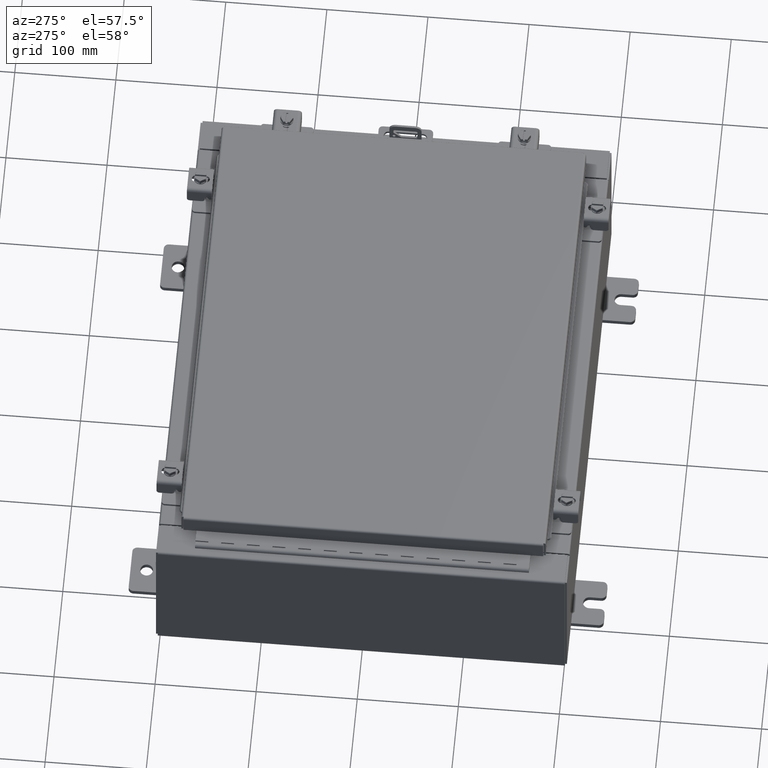
[diagram: clean part render]
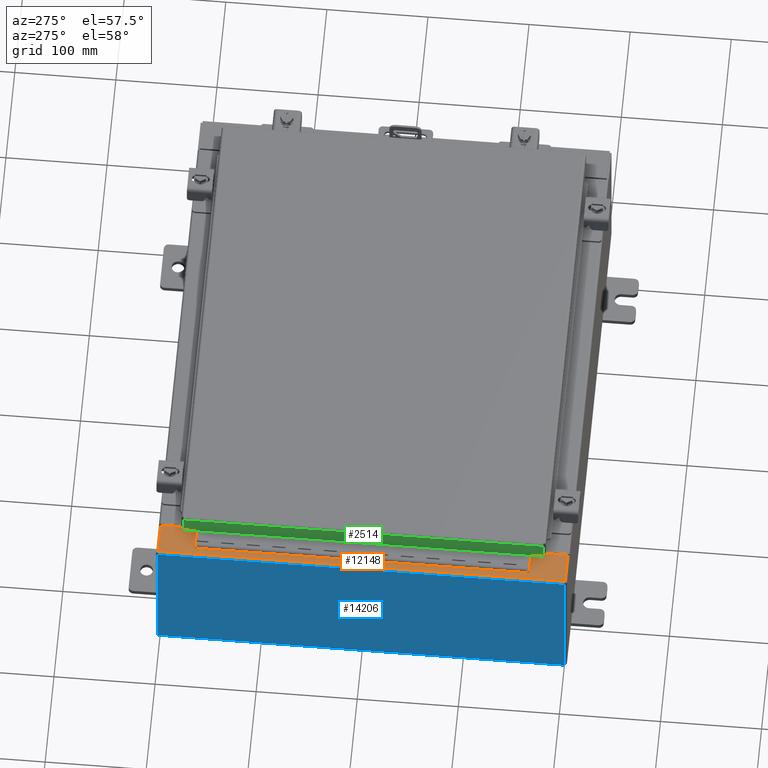
[diagram: same view with three faces highlighted in distinct colors, each labeled with its STEP entity id]
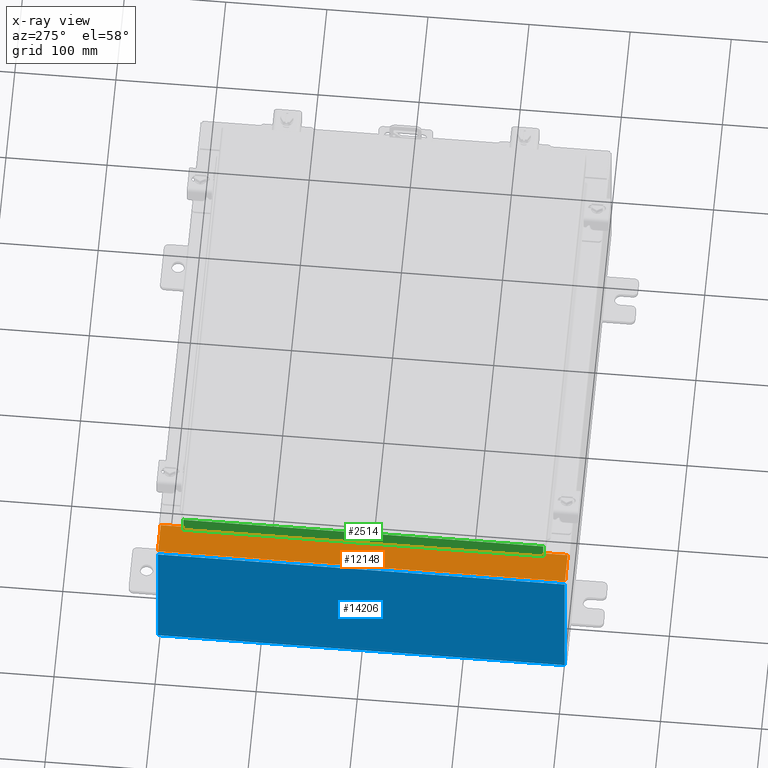
[diagram: x-ray of the same camera — body ghosted, the three highlighted faces saturated]
A machine part, auxiliary view with three faces highlighted in distinct colors.
The next image is the same camera in x-ray (body ghosted, the three faces saturated) — at least one of them is partly hidden behind the body in this view.
Their STEP definitions:

[orange] entity #12148 — the highlighted planar face has unit normal (0, 0, -1).
#438 = CARTESIAN_POINT ( 'NONE',  ( -8.699700000000019500, -4.084959092363675600E-030, 5.925300000000008000 ) ) ;
#535 = DIRECTION ( 'NONE',  ( -4.695517192964913900E-031, 1.000000000000000000, -3.349200841466645600E-045 ) ) ;
#1258 = VECTOR ( 'NONE', #20872, 39.37007874015748100 ) ;
#1472 = VECTOR ( 'NONE', #12022, 39.37007874015748100 ) ;
#1891 = ORIENTED_EDGE ( 'NONE', *, *, #14008, .F. ) ;
#2086 = CARTESIAN_POINT ( 'NONE',  ( -8.712700000000019400, 6.593750000000000000, 5.925300000000008900 ) ) ;
#2397 = VERTEX_POINT ( 'NONE', #14272 ) ;
#2461 = EDGE_CURVE ( 'NONE', #11746, #4951, #7508, .T. ) ;
#2579 = DIRECTION ( 'NONE',  ( 1.000000000000000000, 8.758115402030108600E-047, 7.132762385546378400E-015 ) ) ;
#2815 = EDGE_LOOP ( 'NONE', ( #4905, #9314, #5163, #17751, #16017, #10277, #1891, #15443, #14469, #22759, #20995, #13829 ) ) ;
#3134 = VECTOR ( 'NONE', #4406, 39.37007874015748100 ) ;
#3930 = CARTESIAN_POINT ( 'NONE',  ( -8.750050000000019400, 6.631099999999998200, 5.925300000000008000 ) ) ;
#4035 = CARTESIAN_POINT ( 'NONE',  ( -8.750050000000019400, -6.631100000000000000, 5.925300000000008900 ) ) ;
#4259 = LINE ( 'NONE', #4035, #20557 ) ;
#4311 = VECTOR ( 'NONE', #12335, 39.37007874015748100 ) ;
#4406 = DIRECTION ( 'NONE',  ( -4.695517192964913900E-031, 1.000000000000000000, -3.349200841466645600E-045 ) ) ;
#4532 = VERTEX_POINT ( 'NONE', #10939 ) ;
#4761 = DIRECTION ( 'NONE',  ( -7.132762385546378400E-015, -0.0000000000000000000, 1.000000000000000000 ) ) ;
#4905 = ORIENTED_EDGE ( 'NONE', *, *, #17345, .F. ) ;
#4951 = VERTEX_POINT ( 'NONE', #26107 ) ;
#5163 = ORIENTED_EDGE ( 'NONE', *, *, #19752, .T. ) ;
#5326 = LINE ( 'NONE', #21848, #3134 ) ;
#5377 = LINE ( 'NONE', #2086, #1472 ) ;
#5399 = VECTOR ( 'NONE', #9217, 39.37007874015748100 ) ;
#5540 = CARTESIAN_POINT ( 'NONE',  ( -4.252457061909003800E-014, -7.925300000000000000, 5.925300000000070200 ) ) ;
#5803 = LINE ( 'NONE', #438, #22145 ) ;
#6069 = DIRECTION ( 'NONE',  ( 1.378798528088155100E-016, 1.000000000000000000, 9.834642278393904800E-031 ) ) ;
#6296 = CARTESIAN_POINT ( 'NONE',  ( -9.912300000000019700, 7.925300000000000000, 5.925299999999999100 ) ) ;
#6869 = LINE ( 'NONE', #13724, #4311 ) ;
#7301 = CARTESIAN_POINT ( 'NONE',  ( -8.750050000000019400, 6.593749999999999100, 5.925300000000008900 ) ) ;
#7474 = EDGE_CURVE ( 'NONE', #25016, #23926, #13507, .T. ) ;
#7508 = LINE ( 'NONE', #7301, #14037 ) ;
#7604 = CARTESIAN_POINT ( 'NONE',  ( -8.699700000000019500, 7.925300000000000000, 5.925300000000008000 ) ) ;
#8947 = AXIS2_PLACEMENT_3D ( 'NONE', #14512, #4761, #23578 ) ;
#9144 = CIRCLE ( 'NONE', #8947, 0.01867499999999949400 ) ;
#9217 = DIRECTION ( 'NONE',  ( -1.000000000000000000, 0.0000000000000000000, 0.0000000000000000000 ) ) ;
#9248 = DIRECTION ( 'NONE',  ( 1.000000000000000000, 0.0000000000000000000, -2.170286390200002500E-014 ) ) ;
#9261 = VECTOR ( 'NONE', #6069, 39.37007874015748100 ) ;
#9314 = ORIENTED_EDGE ( 'NONE', *, *, #21384, .T. ) ;
#9688 = VERTEX_POINT ( 'NONE', #14899 ) ;
#9725 = LINE ( 'NONE', #22882, #1258 ) ;
#9742 = VERTEX_POINT ( 'NONE', #16590 ) ;
#10277 = ORIENTED_EDGE ( 'NONE', *, *, #12927, .T. ) ;
#10526 = DIRECTION ( 'NONE',  ( -1.000000000000000000, 0.0000000000000000000, -7.132762385546378400E-015 ) ) ;
#10841 = DIRECTION ( 'NONE',  ( 7.132762385546378400E-015, 0.0000000000000000000, -1.000000000000000000 ) ) ;
#10939 = CARTESIAN_POINT ( 'NONE',  ( -8.699700000000019500, -6.631100000000000000, 5.925300000000008000 ) ) ;
#11675 = AXIS2_PLACEMENT_3D ( 'NONE', #17342, #26023, #18341 ) ;
#11746 = VERTEX_POINT ( 'NONE', #19726 ) ;
#12022 = DIRECTION ( 'NONE',  ( -0.0000000000000000000, -1.000000000000000000, -0.0000000000000000000 ) ) ;
#12148 = ADVANCED_FACE ( 'NONE', ( #20337 ), #18822, .F. ) ;
#12335 = DIRECTION ( 'NONE',  ( -1.000000000000000000, -2.170286390200002500E-014, 2.170286390200002500E-014 ) ) ;
#12927 = EDGE_CURVE ( 'NONE', #9688, #4532, #5803, .T. ) ;
#13507 = LINE ( 'NONE', #6296, #9261 ) ;
#13724 = CARTESIAN_POINT ( 'NONE',  ( -8.699700000000019500, 6.631100000000000000, 5.925300000000008000 ) ) ;
#13829 = ORIENTED_EDGE ( 'NONE', *, *, #20902, .F. ) ;
#13930 = LINE ( 'NONE', #5540, #25288 ) ;
#13932 = EDGE_CURVE ( 'NONE', #9742, #2397, #18852, .T. ) ;
#14008 = EDGE_CURVE ( 'NONE', #2397, #4532, #4259, .T. ) ;
#14037 = VECTOR ( 'NONE', #25133, 39.37007874015748100 ) ;
#14272 = CARTESIAN_POINT ( 'NONE',  ( -8.750050000000019400, -6.631100000000000000, 5.925300000000008000 ) ) ;
#14469 = ORIENTED_EDGE ( 'NONE', *, *, #14916, .F. ) ;
#14488 = CARTESIAN_POINT ( 'NONE',  ( -4.252457061909003800E-014, 0.0000000000000000000, 5.925300000000070200 ) ) ;
#14512 = CARTESIAN_POINT ( 'NONE',  ( -8.750050000000019400, 6.612424999999998200, 5.925300000000008900 ) ) ;
#14899 = CARTESIAN_POINT ( 'NONE',  ( -8.699700000000019500, -7.925300000000000000, 5.925300000000008000 ) ) ;
#14916 = EDGE_CURVE ( 'NONE', #18841, #9742, #23215, .T. ) ;
#15121 = VERTEX_POINT ( 'NONE', #3930 ) ;
#15443 = ORIENTED_EDGE ( 'NONE', *, *, #13932, .F. ) ;
#16017 = ORIENTED_EDGE ( 'NONE', *, *, #17670, .T. ) ;
#16590 = CARTESIAN_POINT ( 'NONE',  ( -8.750050000000019400, -6.593749999999999100, 5.925300000000008000 ) ) ;
#16691 = VERTEX_POINT ( 'NONE', #7604 ) ;
#16699 = CARTESIAN_POINT ( 'NONE',  ( -9.912300000000021400, -7.925300000000000000, 5.925299999999999100 ) ) ;
#17342 = CARTESIAN_POINT ( 'NONE',  ( -8.750050000000019400, -6.612425000000000000, 5.925300000000008900 ) ) ;
#17345 = EDGE_CURVE ( 'NONE', #19352, #15121, #6869, .T. ) ;
#17670 = EDGE_CURVE ( 'NONE', #25016, #9688, #13930, .T. ) ;
#17751 = ORIENTED_EDGE ( 'NONE', *, *, #7474, .F. ) ;
#18341 = DIRECTION ( 'NONE',  ( 1.000000000000000000, 0.0000000000000000000, 0.0000000000000000000 ) ) ;
#18822 = PLANE ( 'NONE',  #26265 ) ;
#18841 = VERTEX_POINT ( 'NONE', #24314 ) ;
#18852 = CIRCLE ( 'NONE', #11675, 0.01867499999999949400 ) ;
#19352 = VERTEX_POINT ( 'NONE', #21441 ) ;
#19726 = CARTESIAN_POINT ( 'NONE',  ( -8.750050000000019400, 6.593749999999999100, 5.925300000000008000 ) ) ;
#19752 = EDGE_CURVE ( 'NONE', #16691, #23926, #9725, .T. ) ;
#20254 = CARTESIAN_POINT ( 'NONE',  ( -8.712700000000019400, -6.593750000000000000, 5.925300000000008900 ) ) ;
#20337 = FACE_OUTER_BOUND ( 'NONE', #2815, .T. ) ;
#20557 = VECTOR ( 'NONE', #9248, 39.37007874015748100 ) ;
#20872 = DIRECTION ( 'NONE',  ( -1.000000000000000000, -6.146651423996189400E-032, -7.132762385546378400E-015 ) ) ;
#20902 = EDGE_CURVE ( 'NONE', #15121, #11746, #9144, .T. ) ;
#20995 = ORIENTED_EDGE ( 'NONE', *, *, #2461, .F. ) ;
#21384 = EDGE_CURVE ( 'NONE', #19352, #16691, #5326, .T. ) ;
#21441 = CARTESIAN_POINT ( 'NONE',  ( -8.699700000000019500, 6.631100000000000000, 5.925300000000008000 ) ) ;
#21848 = CARTESIAN_POINT ( 'NONE',  ( -8.699700000000019500, -4.084959092363675600E-030, 5.925300000000008000 ) ) ;
#22145 = VECTOR ( 'NONE', #535, 39.37007874015748100 ) ;
#22759 = ORIENTED_EDGE ( 'NONE', *, *, #24905, .F. ) ;
#22882 = CARTESIAN_POINT ( 'NONE',  ( -4.252457061909003800E-014, 7.925300000000000000, 5.925300000000070200 ) ) ;
#23215 = LINE ( 'NONE', #20254, #5399 ) ;
#23578 = DIRECTION ( 'NONE',  ( 1.000000000000000000, 0.0000000000000000000, 0.0000000000000000000 ) ) ;
#23926 = VERTEX_POINT ( 'NONE', #25374 ) ;
#24314 = CARTESIAN_POINT ( 'NONE',  ( -8.712700000000019400, -6.593750000000000000, 5.925300000000008900 ) ) ;
#24905 = EDGE_CURVE ( 'NONE', #4951, #18841, #5377, .T. ) ;
#25016 = VERTEX_POINT ( 'NONE', #16699 ) ;
#25133 = DIRECTION ( 'NONE',  ( 1.000000000000000000, 0.0000000000000000000, 0.0000000000000000000 ) ) ;
#25288 = VECTOR ( 'NONE', #2579, 39.37007874015748100 ) ;
#25374 = CARTESIAN_POINT ( 'NONE',  ( -9.912300000000021400, 7.925300000000000000, 5.925299999999999100 ) ) ;
#26023 = DIRECTION ( 'NONE',  ( -7.132762385546378400E-015, -0.0000000000000000000, 1.000000000000000000 ) ) ;
#26107 = CARTESIAN_POINT ( 'NONE',  ( -8.712700000000019400, 6.593749999999999100, 5.925300000000008900 ) ) ;
#26265 = AXIS2_PLACEMENT_3D ( 'NONE', #14488, #10841, #10526 ) ;

[blue] entity #14206 — the highlighted planar face has unit normal (1, 0, 0).
#1012 = DIRECTION ( 'NONE',  ( -0.0000000000000000000, 1.000000000000000000, -0.0000000000000000000 ) ) ;
#2592 = DIRECTION ( 'NONE',  ( 3.319545939341922800E-015, 0.0000000000000000000, -1.000000000000000000 ) ) ;
#2952 = VERTEX_POINT ( 'NONE', #6673 ) ;
#3522 = VERTEX_POINT ( 'NONE', #4836 ) ;
#3743 = EDGE_CURVE ( 'NONE', #3522, #10653, #5884, .T. ) ;
#3947 = DIRECTION ( 'NONE',  ( 3.319545939341922800E-015, 0.0000000000000000000, -1.000000000000000000 ) ) ;
#4836 = CARTESIAN_POINT ( 'NONE',  ( -10.00000000000002300, -7.925300000000000000, 5.837599999999999200 ) ) ;
#5884 = LINE ( 'NONE', #18177, #23936 ) ;
#6569 = EDGE_CURVE ( 'NONE', #13359, #3522, #18105, .T. ) ;
#6673 = CARTESIAN_POINT ( 'NONE',  ( -10.00000000000000000, 7.925300000000000000, 0.01299999999999985900 ) ) ;
#6795 = CARTESIAN_POINT ( 'NONE',  ( -10.00000000000002000, 7.925300000000000000, 5.837599999999999200 ) ) ;
#6925 = EDGE_CURVE ( 'NONE', #10653, #2952, #13805, .T. ) ;
#8577 = ORIENTED_EDGE ( 'NONE', *, *, #6925, .T. ) ;
#10653 = VERTEX_POINT ( 'NONE', #6795 ) ;
#12922 = EDGE_LOOP ( 'NONE', ( #19061, #8577, #16241, #20753 ) ) ;
#13359 = VERTEX_POINT ( 'NONE', #16028 ) ;
#13805 = LINE ( 'NONE', #17103, #23555 ) ;
#14206 = ADVANCED_FACE ( 'NONE', ( #20886 ), #14339, .F. ) ;
#14339 = PLANE ( 'NONE',  #24214 ) ;
#15386 = EDGE_CURVE ( 'NONE', #13359, #2952, #17087, .T. ) ;
#15537 = CARTESIAN_POINT ( 'NONE',  ( -10.00000000000000000, 7.925300000000000000, 0.01299999999999986400 ) ) ;
#16028 = CARTESIAN_POINT ( 'NONE',  ( -10.00000000000000000, -7.925300000000000000, 0.01299999999999986400 ) ) ;
#16241 = ORIENTED_EDGE ( 'NONE', *, *, #15386, .F. ) ;
#17087 = LINE ( 'NONE', #15537, #17152 ) ;
#17103 = CARTESIAN_POINT ( 'NONE',  ( -10.00000000000000000, 7.925300000000000000, -3.345627304943080600E-014 ) ) ;
#17152 = VECTOR ( 'NONE', #1012, 39.37007874015748100 ) ;
#17307 = CARTESIAN_POINT ( 'NONE',  ( -10.00000000000000000, -7.925300000000000000, -3.345627304943080600E-014 ) ) ;
#18105 = LINE ( 'NONE', #17307, #24780 ) ;
#18177 = CARTESIAN_POINT ( 'NONE',  ( -10.00000000000002300, -7.925300000000000000, 5.837599999999999200 ) ) ;
#18685 = DIRECTION ( 'NONE',  ( -3.319545939341922800E-015, 0.0000000000000000000, 1.000000000000000000 ) ) ;
#19061 = ORIENTED_EDGE ( 'NONE', *, *, #3743, .T. ) ;
#19239 = DIRECTION ( 'NONE',  ( 0.0000000000000000000, 1.000000000000000000, 0.0000000000000000000 ) ) ;
#20321 = CARTESIAN_POINT ( 'NONE',  ( -10.00000000000000000, 0.0000000000000000000, -3.345627304943080600E-014 ) ) ;
#20753 = ORIENTED_EDGE ( 'NONE', *, *, #6569, .T. ) ;
#20886 = FACE_OUTER_BOUND ( 'NONE', #12922, .T. ) ;
#21357 = DIRECTION ( 'NONE',  ( 1.000000000000000000, 0.0000000000000000000, 3.319545939341922800E-015 ) ) ;
#23555 = VECTOR ( 'NONE', #3947, 39.37007874015748100 ) ;
#23936 = VECTOR ( 'NONE', #19239, 39.37007874015748100 ) ;
#24214 = AXIS2_PLACEMENT_3D ( 'NONE', #20321, #21357, #2592 ) ;
#24780 = VECTOR ( 'NONE', #18685, 39.37007874015748100 ) ;

[green] entity #2514 — the highlighted planar face has unit normal (1, 0, -0).
#604 = AXIS2_PLACEMENT_3D ( 'NONE', #5477, #9697, #3685 ) ;
#1749 = VECTOR ( 'NONE', #2631, 39.37007874015748100 ) ;
#1983 = CARTESIAN_POINT ( 'NONE',  ( -9.077999999999999400, 7.005157864376271500, -0.08770000000000113800 ) ) ;
#2514 = ADVANCED_FACE ( 'NONE', ( #23725 ), #25588, .F. ) ;
#2631 = DIRECTION ( 'NONE',  ( -3.034122441942816500E-015, 6.982962677686265900E-015, -1.000000000000000000 ) ) ;
#2713 = CARTESIAN_POINT ( 'NONE',  ( -9.077999999999999400, -7.093999999999999400, -0.08770000000000004200 ) ) ;
#3323 = CARTESIAN_POINT ( 'NONE',  ( -9.078000000000001200, -7.005157864376262600, -0.7949999999999996000 ) ) ;
#3685 = DIRECTION ( 'NONE',  ( -3.034122441942816500E-015, 0.0000000000000000000, -1.000000000000000000 ) ) ;
#4236 = CARTESIAN_POINT ( 'NONE',  ( -9.077999999999999400, -7.005157864376268900, -0.07469999999999976700 ) ) ;
#5477 = CARTESIAN_POINT ( 'NONE',  ( -9.077999999999999400, -6.991744033404087000E-016, 2.780457718396846700E-014 ) ) ;
#5629 = LINE ( 'NONE', #21909, #8403 ) ;
#6269 = VECTOR ( 'NONE', #25733, 39.37007874015748100 ) ;
#6681 = DIRECTION ( 'NONE',  ( -7.701855070945201600E-017, 1.000000000000000000, 1.251551449028595500E-016 ) ) ;
#6880 = LINE ( 'NONE', #4236, #1749 ) ;
#7680 = ORIENTED_EDGE ( 'NONE', *, *, #21556, .F. ) ;
#8403 = VECTOR ( 'NONE', #6681, 39.37007874015748100 ) ;
#9174 = EDGE_LOOP ( 'NONE', ( #22146, #26284, #7680, #23693 ) ) ;
#9697 = DIRECTION ( 'NONE',  ( 1.000000000000000000, 7.701855070945239800E-017, -3.034122441942816500E-015 ) ) ;
#11063 = VERTEX_POINT ( 'NONE', #12938 ) ;
#12938 = CARTESIAN_POINT ( 'NONE',  ( -9.077999999999999400, -7.005157864376266200, -0.08770000000000061100 ) ) ;
#15861 = CARTESIAN_POINT ( 'NONE',  ( -9.077999999999999400, 7.005157864376270600, 7.672133310220841000E-014 ) ) ;
#18404 = LINE ( 'NONE', #2713, #18492 ) ;
#18492 = VECTOR ( 'NONE', #25477, 39.37007874015748100 ) ;
#19138 = VERTEX_POINT ( 'NONE', #20764 ) ;
#19993 = LINE ( 'NONE', #15861, #6269 ) ;
#20764 = CARTESIAN_POINT ( 'NONE',  ( -9.078000000000001200, 7.005157864376276000, -0.7949999999999979300 ) ) ;
#21343 = EDGE_CURVE ( 'NONE', #26229, #11063, #18404, .T. ) ;
#21512 = EDGE_CURVE ( 'NONE', #11063, #23069, #6880, .T. ) ;
#21516 = EDGE_CURVE ( 'NONE', #26229, #19138, #19993, .T. ) ;
#21556 = EDGE_CURVE ( 'NONE', #23069, #19138, #5629, .T. ) ;
#21909 = CARTESIAN_POINT ( 'NONE',  ( -9.078000000000001200, -7.093999999999999400, -0.7949999999999997100 ) ) ;
#22146 = ORIENTED_EDGE ( 'NONE', *, *, #21343, .F. ) ;
#23069 = VERTEX_POINT ( 'NONE', #3323 ) ;
#23693 = ORIENTED_EDGE ( 'NONE', *, *, #21512, .F. ) ;
#23725 = FACE_OUTER_BOUND ( 'NONE', #9174, .T. ) ;
#25477 = DIRECTION ( 'NONE',  ( 7.701855070945263300E-017, -1.000000000000000000, 7.701855070945202900E-017 ) ) ;
#25588 = PLANE ( 'NONE',  #604 ) ;
#25733 = DIRECTION ( 'NONE',  ( -3.034122441942816500E-015, 6.982962677686265900E-015, -1.000000000000000000 ) ) ;
#26229 = VERTEX_POINT ( 'NONE', #1983 ) ;
#26284 = ORIENTED_EDGE ( 'NONE', *, *, #21516, .T. ) ;